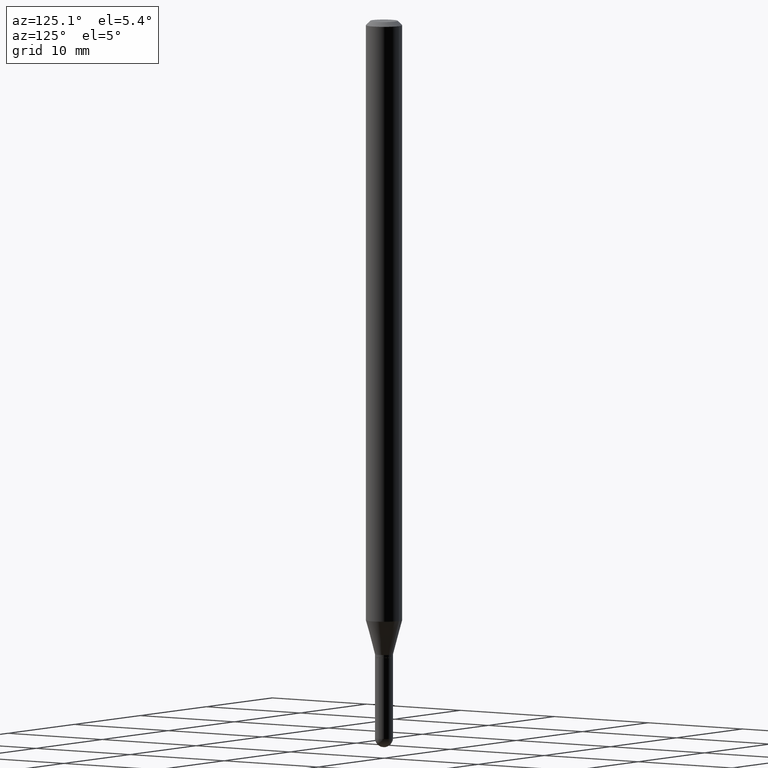
[diagram: clean part render]
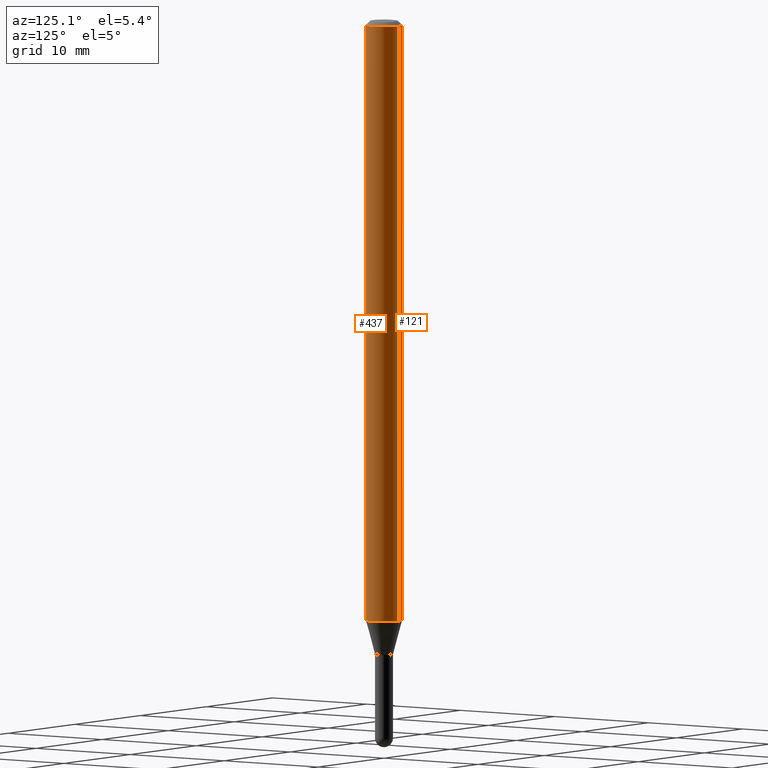
[diagram: same view with one multi-face feature highlighted, each face labeled with its STEP entity id]
A machine part, auxiliary view. The highlighted faces form ONE feature: a constant-radius fillet chain: 2 tangent blend faces with common blend radius 1.5875 mm. The faces share edges in the B-rep.
Their STEP definitions:
[1] entity #121 (Cylinder):
#14 = CARTESIAN_POINT ( 'NONE',  ( 5.043592810545655603E-29, -7.201030668786385681E-15, -2.062440399561580762 ) ) ;
#16 = CARTESIAN_POINT ( 'NONE',  ( -4.364351673553916201E-16, -0.06250000000000000000, 2.182193564938025327E-16 ) ) ;
#17 = EDGE_LOOP ( 'NONE', ( #205, #465, #338, #242 ) ) ;
#20 = DIRECTION ( 'NONE',  ( -2.445448998971213131E-29, 3.491509703900840918E-15, 1.000000000000000000 ) ) ;
#28 = VERTEX_POINT ( 'NONE', #147 ) ;
#56 = LINE ( 'NONE', #61, #266 ) ;
#61 = CARTESIAN_POINT ( 'NONE',  ( 4.440892098500625669E-16, 0.06250000000000000000, -2.182193564938025327E-16 ) ) ;
#63 = VECTOR ( 'NONE', #20, 39.37007874015748143 ) ;
#121 = ADVANCED_FACE ( 'NONE', ( #429 ), #402, .T. ) ;
#124 = AXIS2_PLACEMENT_3D ( 'NONE', #14, #131, #374 ) ;
#131 = DIRECTION ( 'NONE',  ( -2.445448998971213131E-29, 3.491509703900840523E-15, 1.000000000000000000 ) ) ;
#137 = AXIS2_PLACEMENT_3D ( 'NONE', #367, #414, #194 ) ;
#147 = CARTESIAN_POINT ( 'NONE',  ( 4.440892098501128074E-16, 0.06249999999999277661, -2.062440399561580762 ) ) ;
#165 = VERTEX_POINT ( 'NONE', #472 ) ;
#190 = CIRCLE ( 'NONE', #124, 0.06250000000000000000 ) ;
#194 = DIRECTION ( 'NONE',  ( -6.982962677686265922E-15, -1.000000000000000000, 3.483106191921935554E-15 ) ) ;
#205 = ORIENTED_EDGE ( 'NONE', *, *, #355, .F. ) ;
#242 = ORIENTED_EDGE ( 'NONE', *, *, #332, .F. ) ;
#245 = CARTESIAN_POINT ( 'NONE',  ( 4.440892098501133991E-16, 0.06249999999999995143, -0.01500000000000054588 ) ) ;
#266 = VECTOR ( 'NONE', #452, 39.37007874015748143 ) ;
#303 = VERTEX_POINT ( 'NONE', #458 ) ;
#318 = CARTESIAN_POINT ( 'NONE',  ( 0.000000000000000000, 0.000000000000000000, 0.000000000000000000 ) ) ;
#332 = EDGE_CURVE ( 'NONE', #351, #165, #360, .T. ) ;
#338 = ORIENTED_EDGE ( 'NONE', *, *, #384, .T. ) ;
#350 = EDGE_CURVE ( 'NONE', #28, #303, #190, .T. ) ;
#351 = VERTEX_POINT ( 'NONE', #245 ) ;
#352 = AXIS2_PLACEMENT_3D ( 'NONE', #318, #363, #487 ) ;
#355 = EDGE_CURVE ( 'NONE', #28, #351, #56, .T. ) ;
#360 = CIRCLE ( 'NONE', #137, 0.06250000000000000000 ) ;
#363 = DIRECTION ( 'NONE',  ( -2.445448998971213131E-29, 3.491509703900840523E-15, 1.000000000000000000 ) ) ;
#367 = CARTESIAN_POINT ( 'NONE',  ( 3.668173498456900411E-31, -5.237264555851376057E-17, -0.01500000000000032904 ) ) ;
#374 = DIRECTION ( 'NONE',  ( -6.982962677686265922E-15, -1.000000000000000000, 4.370956789862821150E-15 ) ) ;
#384 = EDGE_CURVE ( 'NONE', #303, #165, #495, .T. ) ;
#402 = CYLINDRICAL_SURFACE ( 'NONE', #352, 0.06250000000000000000 ) ;
#414 = DIRECTION ( 'NONE',  ( -2.445448998971213131E-29, 3.491509703900840523E-15, 1.000000000000000000 ) ) ;
#429 = FACE_OUTER_BOUND ( 'NONE', #17, .T. ) ;
#452 = DIRECTION ( 'NONE',  ( -2.445448998971213131E-29, 3.491509703900840918E-15, 1.000000000000000000 ) ) ;
#458 = CARTESIAN_POINT ( 'NONE',  ( -4.364351673553413795E-16, -0.06250000000000724421, -2.062440399561580318 ) ) ;
#465 = ORIENTED_EDGE ( 'NONE', *, *, #350, .T. ) ;
#472 = CARTESIAN_POINT ( 'NONE',  ( -4.364351673553912750E-16, -0.06250000000000005551, -0.01500000000000011047 ) ) ;
#487 = DIRECTION ( 'NONE',  ( -6.982962677686265922E-15, -1.000000000000000000, 3.491509703900840523E-15 ) ) ;
#495 = LINE ( 'NONE', #16, #63 ) ;
[2] entity #437 (Cylinder):
#15 = ORIENTED_EDGE ( 'NONE', *, *, #384, .F. ) ;
#16 = CARTESIAN_POINT ( 'NONE',  ( -4.364351673553916201E-16, -0.06250000000000000000, 2.182193564938025327E-16 ) ) ;
#18 = FACE_OUTER_BOUND ( 'NONE', #291, .T. ) ;
#20 = DIRECTION ( 'NONE',  ( -2.445448998971213131E-29, 3.491509703900840918E-15, 1.000000000000000000 ) ) ;
#22 = ORIENTED_EDGE ( 'NONE', *, *, #248, .F. ) ;
#28 = VERTEX_POINT ( 'NONE', #147 ) ;
#48 = CIRCLE ( 'NONE', #505, 0.06250000000000000000 ) ;
#56 = LINE ( 'NONE', #61, #266 ) ;
#61 = CARTESIAN_POINT ( 'NONE',  ( 4.440892098500625669E-16, 0.06250000000000000000, -2.182193564938025327E-16 ) ) ;
#63 = VECTOR ( 'NONE', #20, 39.37007874015748143 ) ;
#75 = DIRECTION ( 'NONE',  ( -6.982962677686265922E-15, -1.000000000000000000, 3.483106191921935554E-15 ) ) ;
#80 = DIRECTION ( 'NONE',  ( -2.445448998971213131E-29, 3.491509703900840523E-15, 1.000000000000000000 ) ) ;
#82 = CARTESIAN_POINT ( 'NONE',  ( 3.668173498456900411E-31, -5.237264555851376057E-17, -0.01500000000000032904 ) ) ;
#90 = CARTESIAN_POINT ( 'NONE',  ( 5.043592810545655603E-29, -7.201030668786385681E-15, -2.062440399561580762 ) ) ;
#138 = CARTESIAN_POINT ( 'NONE',  ( 0.000000000000000000, 0.000000000000000000, 0.000000000000000000 ) ) ;
#147 = CARTESIAN_POINT ( 'NONE',  ( 4.440892098501128074E-16, 0.06249999999999277661, -2.062440399561580762 ) ) ;
#165 = VERTEX_POINT ( 'NONE', #472 ) ;
#216 = CIRCLE ( 'NONE', #430, 0.06250000000000000000 ) ;
#239 = ORIENTED_EDGE ( 'NONE', *, *, #355, .T. ) ;
#245 = CARTESIAN_POINT ( 'NONE',  ( 4.440892098501133991E-16, 0.06249999999999995143, -0.01500000000000054588 ) ) ;
#248 = EDGE_CURVE ( 'NONE', #165, #351, #216, .T. ) ;
#266 = VECTOR ( 'NONE', #452, 39.37007874015748143 ) ;
#291 = EDGE_LOOP ( 'NONE', ( #404, #239, #22, #15 ) ) ;
#292 = DIRECTION ( 'NONE',  ( -6.982962677686265922E-15, -1.000000000000000000, 3.491509703900840523E-15 ) ) ;
#294 = DIRECTION ( 'NONE',  ( -6.982962677686265922E-15, -1.000000000000000000, 4.370956789862821150E-15 ) ) ;
#303 = VERTEX_POINT ( 'NONE', #458 ) ;
#320 = DIRECTION ( 'NONE',  ( -2.445448998971213131E-29, 3.491509703900840523E-15, 1.000000000000000000 ) ) ;
#351 = VERTEX_POINT ( 'NONE', #245 ) ;
#355 = EDGE_CURVE ( 'NONE', #28, #351, #56, .T. ) ;
#362 = AXIS2_PLACEMENT_3D ( 'NONE', #138, #376, #292 ) ;
#365 = EDGE_CURVE ( 'NONE', #303, #28, #48, .T. ) ;
#376 = DIRECTION ( 'NONE',  ( -2.445448998971213131E-29, 3.491509703900840523E-15, 1.000000000000000000 ) ) ;
#384 = EDGE_CURVE ( 'NONE', #303, #165, #495, .T. ) ;
#404 = ORIENTED_EDGE ( 'NONE', *, *, #365, .T. ) ;
#430 = AXIS2_PLACEMENT_3D ( 'NONE', #82, #80, #75 ) ;
#437 = ADVANCED_FACE ( 'NONE', ( #18 ), #499, .T. ) ;
#452 = DIRECTION ( 'NONE',  ( -2.445448998971213131E-29, 3.491509703900840918E-15, 1.000000000000000000 ) ) ;
#458 = CARTESIAN_POINT ( 'NONE',  ( -4.364351673553413795E-16, -0.06250000000000724421, -2.062440399561580318 ) ) ;
#472 = CARTESIAN_POINT ( 'NONE',  ( -4.364351673553912750E-16, -0.06250000000000005551, -0.01500000000000011047 ) ) ;
#495 = LINE ( 'NONE', #16, #63 ) ;
#499 = CYLINDRICAL_SURFACE ( 'NONE', #362, 0.06250000000000000000 ) ;
#505 = AXIS2_PLACEMENT_3D ( 'NONE', #90, #320, #294 ) ;